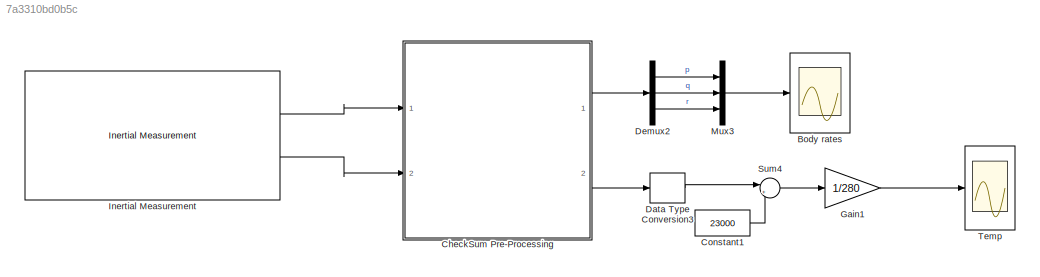
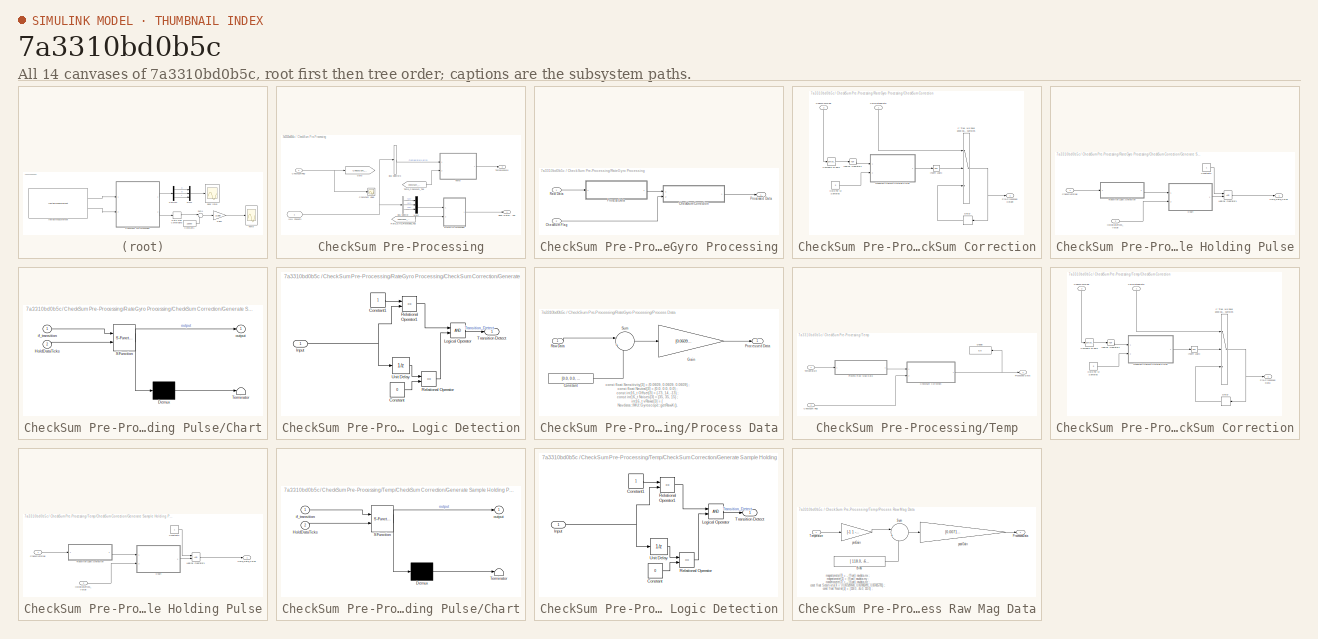
[diagram: thumbnail index - all 14 canvases of the model, root first then tree order]
MODEL slx_7a3310bd0b5c
KIND model
BLOCK [Scope] Body rates
  DataFormat = StructureWithTime
  Floating = off
  LimitDataPoints = off
  NumInputPorts = 1
  Ports = [1]
  SampleTime = 0
  SaveName = Gyro
  SaveToWorkspace = on
  ShowLegends = on
  TimeRange = 200
  YMax = 45
  YMin = -45
  ZoomMode = yonly
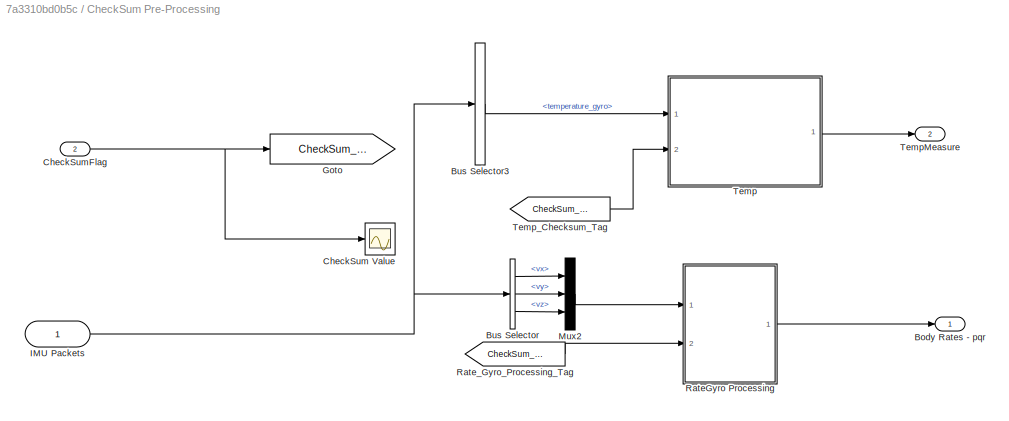
BLOCK [SubSystem] CheckSum Pre-Processing
  Ports = [2, 2]
  RequestExecContextInheritance = off
BLOCK [Outport] CheckSum Pre-Processing/Body Rates - pqr
  IconDisplay = Port number
BLOCK [BusSelector] CheckSum Pre-Processing/Bus Selector
  OutputSignals = vx,vy,vz
  Ports = [1, 3]
BLOCK [BusSelector] CheckSum Pre-Processing/Bus Selector3
  OutputSignals = temperature_gyro
  Ports = [1, 1]
BLOCK [Scope] CheckSum Pre-Processing/CheckSum Value
  DataFormat = StructureWithTime
  Floating = off
  LimitDataPoints = off
  NumInputPorts = 1
  Ports = [1]
  SampleTime = 0
  SaveName = CheckSum
  SaveToWorkspace = on
  ShowLegends = off
  YMax = 2500
  YMin = 0
  ZoomMode = xonly
BLOCK [Inport] CheckSum Pre-Processing/CheckSumFlag
  IconDisplay = Port number
  Port = 2
BLOCK [Goto] CheckSum Pre-Processing/Goto
  GotoTag = CheckSum_Tag
  IconDisplay = Signal name
BLOCK [Inport] CheckSum Pre-Processing/IMU Packets
  IconDisplay = Port number
BLOCK [Mux] CheckSum Pre-Processing/Mux2
  DisplayOption = bar
  Inputs = 3
  Ports = [3, 1]
BLOCK [SubSystem] CheckSum Pre-Processing/RateGyro Processing
  Ports = [2, 1]
  RequestExecContextInheritance = off
BLOCK [SubSystem] CheckSum Pre-Processing/RateGyro Processing/CheckSum Correction
  Ports = [2, 1]
  RequestExecContextInheritance = off
BLOCK [Inport] CheckSum Pre-Processing/RateGyro Processing/CheckSum Correction/CalculatedData
  IconDisplay = Port number
BLOCK [Inport] CheckSum Pre-Processing/RateGyro Processing/CheckSum Correction/CheckSumFlag
  IconDisplay = Port number
  Port = 2
BLOCK [Reference] CheckSum Pre-Processing/RateGyro Processing/CheckSum Correction/Compare To Zero  REF=simulink/Logic and Bit
Operations/Compare
To Zero
  OutDataTypeStr = boolean
  Ports = [1, 1]
  SourceBlock = simulink/Logic and Bit\nOperations/Compare\nTo Zero
  SourceType = Compare To Zero
  ZeroCross = on
  relop = >
BLOCK [Delay] CheckSum Pre-Processing/RateGyro Processing/CheckSum Correction/Delay
  DelayLength = 3
  InitialCondition = 0
  InputPortMap = u0
  Ports = [1, 1]
BLOCK [SubSystem] CheckSum Pre-Processing/RateGyro Processing/CheckSum Correction/Generate Sample Holding Pulse
  Ports = [2, 1]
  RequestExecContextInheritance = off
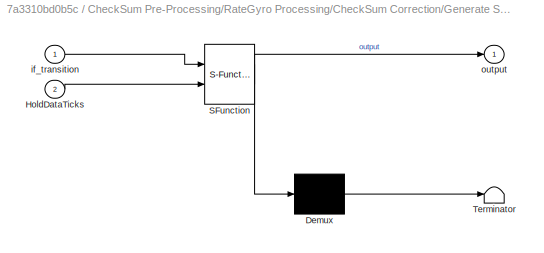
BLOCK [SubSystem] CheckSum Pre-Processing/RateGyro Processing/CheckSum Correction/Generate Sample Holding Pulse/Chart
  ErrorFcn = Stateflow.Translate.translate
  PermitHierarchicalResolution = ExplicitOnly
  Ports = [2, 1]
  RequestExecContextInheritance = off
  SFBlockType = Chart
  TreatAsAtomicUnit = on
BLOCK [Demux] CheckSum Pre-Processing/RateGyro Processing/CheckSum Correction/Generate Sample Holding Pulse/Chart/ Demux 
  Outputs = 1
  Ports = [1, 1]
BLOCK [S-Function] CheckSum Pre-Processing/RateGyro Processing/CheckSum Correction/Generate Sample Holding Pulse/Chart/ SFunction 
  EnableBusSupport = on
  FunctionName = sf_sfun
  PortCounts = [2 2]
  Ports = [2, 2]
  Tag = Stateflow S-Function TempMeasure 3
BLOCK [Terminator] CheckSum Pre-Processing/RateGyro Processing/CheckSum Correction/Generate Sample Holding Pulse/Chart/ Terminator 
BLOCK [Inport] CheckSum Pre-Processing/RateGyro Processing/CheckSum Correction/Generate Sample Holding Pulse/Chart/HoldDataTicks
  IconDisplay = Port number
  Port = 2
BLOCK [Inport] CheckSum Pre-Processing/RateGyro Processing/CheckSum Correction/Generate Sample Holding Pulse/Chart/if_transition
  IconDisplay = Port number
BLOCK [Outport] CheckSum Pre-Processing/RateGyro Processing/CheckSum Correction/Generate Sample Holding Pulse/Chart/output
  IconDisplay = Port number
BLOCK [Inport] CheckSum Pre-Processing/RateGyro Processing/CheckSum Correction/Generate Sample Holding Pulse/CheckSumFlag
  IconDisplay = Port number
BLOCK [Constant] CheckSum Pre-Processing/RateGyro Processing/CheckSum Correction/Generate Sample Holding Pulse/Constant2
BLOCK [Inport] CheckSum Pre-Processing/RateGyro Processing/CheckSum Correction/Generate Sample Holding Pulse/HoldDataTicks_Value
  IconDisplay = Port number
  Port = 2
BLOCK [Outport] CheckSum Pre-Processing/RateGyro Processing/CheckSum Correction/Generate Sample Holding Pulse/Hold_Data_Pulse
  IconDisplay = Port number
BLOCK [Logic] CheckSum Pre-Processing/RateGyro Processing/CheckSum Correction/Generate Sample Holding Pulse/Logical Operator1
  AllPortsSameDT = off
  OutDataTypeStr = boolean
  Ports = [2, 1]
BLOCK [SubSystem] CheckSum Pre-Processing/RateGyro Processing/CheckSum Correction/Generate Sample Holding Pulse/Transition Logic Detection
  Ports = [1, 1]
  RequestExecContextInheritance = off
BLOCK [Constant] CheckSum Pre-Processing/RateGyro Processing/CheckSum Correction/Generate Sample Holding Pulse/Transition Logic Detection/Constant
  Value = 0
BLOCK [Constant] CheckSum Pre-Processing/RateGyro Processing/CheckSum Correction/Generate Sample Holding Pulse/Transition Logic Detection/Constant1
BLOCK [Inport] CheckSum Pre-Processing/RateGyro Processing/CheckSum Correction/Generate Sample Holding Pulse/Transition Logic Detection/Input
  IconDisplay = Port number
BLOCK [Logic] CheckSum Pre-Processing/RateGyro Processing/CheckSum Correction/Generate Sample Holding Pulse/Transition Logic Detection/Logical Operator
  AllPortsSameDT = off
  OutDataTypeStr = boolean
  Ports = [2, 1]
BLOCK [RelationalOperator] CheckSum Pre-Processing/RateGyro Processing/CheckSum Correction/Generate Sample Holding Pulse/Transition Logic Detection/Relational Operator
  InputSameDT = off
  Operator = ==
  OutDataTypeStr = boolean
  Ports = [2, 1]
BLOCK [RelationalOperator] CheckSum Pre-Processing/RateGyro Processing/CheckSum Correction/Generate Sample Holding Pulse/Transition Logic Detection/Relational Operator1
  InputSameDT = off
  Operator = ==
  OutDataTypeStr = boolean
  Ports = [2, 1]
BLOCK [Outport] CheckSum Pre-Processing/RateGyro Processing/CheckSum Correction/Generate Sample Holding Pulse/Transition Logic Detection/Transition Detect
  IconDisplay = Port number
BLOCK [UnitDelay] CheckSum Pre-Processing/RateGyro Processing/CheckSum Correction/Generate Sample Holding Pulse/Transition Logic Detection/Unit Delay
  InputProcessing = Elements as channels (sample based)
  SampleTime = -1
BLOCK [Constant] CheckSum Pre-Processing/RateGyro Processing/CheckSum Correction/Hold For M Samples
  SampleTime = -1
  Value = 5
BLOCK [Switch] CheckSum Pre-Processing/RateGyro Processing/CheckSum Correction/If True, we have good data, If false, we have bad data, With bad data, use previous good data from N samples ago and hold it on that value for M samples
  Criteria = u2 > Threshold
  InputSameDT = off
  SaturateOnIntegerOverflow = off
BLOCK [Logic] CheckSum Pre-Processing/RateGyro Processing/CheckSum Correction/Invert Logic
  AllPortsSameDT = off
  Operator = NOT
  OutDataTypeStr = boolean
  Ports = [1, 1]
BLOCK [Logic] CheckSum Pre-Processing/RateGyro Processing/CheckSum Correction/Logical Operator1
  AllPortsSameDT = off
  Operator = NOT
  OutDataTypeStr = boolean
  Ports = [1, 1]
BLOCK [Outport] CheckSum Pre-Processing/RateGyro Processing/CheckSum Correction/Pre-Processed Height
  IconDisplay = Port number
BLOCK [Inport] CheckSum Pre-Processing/RateGyro Processing/CheckSum Flag
  IconDisplay = Port number
  Port = 2
BLOCK [SubSystem] CheckSum Pre-Processing/RateGyro Processing/Process Data
  Commented = through
  Ports = [1, 1]
  RequestExecContextInheritance = off
BLOCK [Constant] CheckSum Pre-Processing/RateGyro Processing/Process Data/Constant
  Value = [0.0, 0.0, 0.0]
BLOCK [Gain] CheckSum Pre-Processing/RateGyro Processing/Process Data/Gain
  Gain = [0.0609, 0.0609, 0.0609]
  OutDataTypeStr = Inherit: Inherit via internal rule
  ParamDataTypeStr = Inherit: Inherit via internal rule
  SaturateOnIntegerOverflow = off
BLOCK [Outport] CheckSum Pre-Processing/RateGyro Processing/Process Data/Processed Data
  IconDisplay = Port number
BLOCK [Inport] CheckSum Pre-Processing/RateGyro Processing/Process Data/Raw Data
  IconDisplay = Port number
BLOCK [Sum] CheckSum Pre-Processing/RateGyro Processing/Process Data/Sum
  IconShape = round
  InputSameDT = off
  Inputs = |++
  OutDataTypeStr = Inherit: Inherit via internal rule
  Ports = [2, 1]
  SaturateOnIntegerOverflow = off
BLOCK [Outport] CheckSum Pre-Processing/RateGyro Processing/Processed Data
  IconDisplay = Port number
BLOCK [Inport] CheckSum Pre-Processing/RateGyro Processing/Raw Data
  IconDisplay = Port number
BLOCK [From] CheckSum Pre-Processing/Rate_Gyro_Processing_Tag
  GotoTag = CheckSum_Tag
BLOCK [SubSystem] CheckSum Pre-Processing/Temp
  Ports = [2, 1]
  RequestExecContextInheritance = off
BLOCK [SubSystem] CheckSum Pre-Processing/Temp/CheckSum Correction
  Ports = [2, 1]
  RequestExecContextInheritance = off
BLOCK [Inport] CheckSum Pre-Processing/Temp/CheckSum Correction/CalculatedData
  IconDisplay = Port number
BLOCK [Inport] CheckSum Pre-Processing/Temp/CheckSum Correction/CheckSumFlag
  IconDisplay = Port number
  Port = 2
BLOCK [Reference] CheckSum Pre-Processing/Temp/CheckSum Correction/Compare To Zero  REF=simulink/Logic and Bit
Operations/Compare
To Zero
  OutDataTypeStr = boolean
  Ports = [1, 1]
  SourceBlock = simulink/Logic and Bit\nOperations/Compare\nTo Zero
  SourceType = Compare To Zero
  ZeroCross = on
  relop = >
BLOCK [Delay] CheckSum Pre-Processing/Temp/CheckSum Correction/Delay
  DelayLength = 3
  InitialCondition = 0
  InputPortMap = u0
  Ports = [1, 1]
BLOCK [SubSystem] CheckSum Pre-Processing/Temp/CheckSum Correction/Generate Sample Holding Pulse
  Ports = [2, 1]
  RequestExecContextInheritance = off
BLOCK [SubSystem] CheckSum Pre-Processing/Temp/CheckSum Correction/Generate Sample Holding Pulse/Chart
  ErrorFcn = Stateflow.Translate.translate
  PermitHierarchicalResolution = ExplicitOnly
  Ports = [2, 1]
  RequestExecContextInheritance = off
  SFBlockType = Chart
  TreatAsAtomicUnit = on
BLOCK [Demux] CheckSum Pre-Processing/Temp/CheckSum Correction/Generate Sample Holding Pulse/Chart/ Demux 
  Outputs = 1
  Ports = [1, 1]
BLOCK [S-Function] CheckSum Pre-Processing/Temp/CheckSum Correction/Generate Sample Holding Pulse/Chart/ SFunction 
  EnableBusSupport = on
  FunctionName = sf_sfun
  PortCounts = [2 2]
  Ports = [2, 2]
  Tag = Stateflow S-Function TempMeasure 7
BLOCK [Terminator] CheckSum Pre-Processing/Temp/CheckSum Correction/Generate Sample Holding Pulse/Chart/ Terminator 
BLOCK [Inport] CheckSum Pre-Processing/Temp/CheckSum Correction/Generate Sample Holding Pulse/Chart/HoldDataTicks
  IconDisplay = Port number
  Port = 2
BLOCK [Inport] CheckSum Pre-Processing/Temp/CheckSum Correction/Generate Sample Holding Pulse/Chart/if_transition
  IconDisplay = Port number
BLOCK [Outport] CheckSum Pre-Processing/Temp/CheckSum Correction/Generate Sample Holding Pulse/Chart/output
  IconDisplay = Port number
BLOCK [Inport] CheckSum Pre-Processing/Temp/CheckSum Correction/Generate Sample Holding Pulse/CheckSumFlag
  IconDisplay = Port number
BLOCK [Constant] CheckSum Pre-Processing/Temp/CheckSum Correction/Generate Sample Holding Pulse/Constant2
BLOCK [Inport] CheckSum Pre-Processing/Temp/CheckSum Correction/Generate Sample Holding Pulse/HoldDataTicks_Value
  IconDisplay = Port number
  Port = 2
BLOCK [Outport] CheckSum Pre-Processing/Temp/CheckSum Correction/Generate Sample Holding Pulse/Hold_Data_Pulse
  IconDisplay = Port number
BLOCK [Logic] CheckSum Pre-Processing/Temp/CheckSum Correction/Generate Sample Holding Pulse/Logical Operator1
  AllPortsSameDT = off
  OutDataTypeStr = boolean
  Ports = [2, 1]
BLOCK [SubSystem] CheckSum Pre-Processing/Temp/CheckSum Correction/Generate Sample Holding Pulse/Transition Logic Detection
  Ports = [1, 1]
  RequestExecContextInheritance = off
BLOCK [Constant] CheckSum Pre-Processing/Temp/CheckSum Correction/Generate Sample Holding Pulse/Transition Logic Detection/Constant
  Value = 0
BLOCK [Constant] CheckSum Pre-Processing/Temp/CheckSum Correction/Generate Sample Holding Pulse/Transition Logic Detection/Constant1
BLOCK [Inport] CheckSum Pre-Processing/Temp/CheckSum Correction/Generate Sample Holding Pulse/Transition Logic Detection/Input
  IconDisplay = Port number
BLOCK [Logic] CheckSum Pre-Processing/Temp/CheckSum Correction/Generate Sample Holding Pulse/Transition Logic Detection/Logical Operator
  AllPortsSameDT = off
  OutDataTypeStr = boolean
  Ports = [2, 1]
BLOCK [RelationalOperator] CheckSum Pre-Processing/Temp/CheckSum Correction/Generate Sample Holding Pulse/Transition Logic Detection/Relational Operator
  InputSameDT = off
  Operator = ==
  OutDataTypeStr = boolean
  Ports = [2, 1]
BLOCK [RelationalOperator] CheckSum Pre-Processing/Temp/CheckSum Correction/Generate Sample Holding Pulse/Transition Logic Detection/Relational Operator1
  InputSameDT = off
  Operator = ==
  OutDataTypeStr = boolean
  Ports = [2, 1]
BLOCK [Outport] CheckSum Pre-Processing/Temp/CheckSum Correction/Generate Sample Holding Pulse/Transition Logic Detection/Transition Detect
  IconDisplay = Port number
BLOCK [UnitDelay] CheckSum Pre-Processing/Temp/CheckSum Correction/Generate Sample Holding Pulse/Transition Logic Detection/Unit Delay
  InputProcessing = Elements as channels (sample based)
  SampleTime = -1
BLOCK [Constant] CheckSum Pre-Processing/Temp/CheckSum Correction/Hold For M Samples
  Value = 5
BLOCK [Switch] CheckSum Pre-Processing/Temp/CheckSum Correction/If True, we have good data, If false, we have bad data, With bad data, use previous good data from N samples ago and hold it on that value for M samples
  Criteria = u2 > Threshold
  InputSameDT = off
  SaturateOnIntegerOverflow = off
BLOCK [Logic] CheckSum Pre-Processing/Temp/CheckSum Correction/Invert Logic
  AllPortsSameDT = off
  Operator = NOT
  OutDataTypeStr = boolean
  Ports = [1, 1]
BLOCK [Logic] CheckSum Pre-Processing/Temp/CheckSum Correction/Logical Operator1
  AllPortsSameDT = off
  Operator = NOT
  OutDataTypeStr = boolean
  Ports = [1, 1]
BLOCK [Outport] CheckSum Pre-Processing/Temp/CheckSum Correction/Pre-Processed Data
  IconDisplay = Port number
BLOCK [Inport] CheckSum Pre-Processing/Temp/CheckSum Flag
  IconDisplay = Port number
  Port = 2
BLOCK [Display] CheckSum Pre-Processing/Temp/Display
  Decimation = 1
  Ports = [1]
BLOCK [SubSystem] CheckSum Pre-Processing/Temp/Process Raw Mag Data
  Commented = through
  Ports = [1, 1]
  RequestExecContextInheritance = off
BLOCK [Constant] CheckSum Pre-Processing/Temp/Process Raw Mag Data/Bias
  Value = [ 118.0, -65.0, 110.0 ]
BLOCK [Outport] CheckSum Pre-Processing/Temp/Process Raw Mag Data/ProcessedData
  IconDisplay = Port number
BLOCK [Sum] CheckSum Pre-Processing/Temp/Process Raw Mag Data/Sum
  IconShape = round
  InputSameDT = off
  Inputs = |+-
  OutDataTypeStr = Inherit: Inherit via internal rule
  Ports = [2, 1]
  SaturateOnIntegerOverflow = off
BLOCK [Inport] CheckSum Pre-Processing/Temp/Process Raw Mag Data/Temperature
  IconDisplay = Port number
BLOCK [Gain] CheckSum Pre-Processing/Temp/Process Raw Mag Data/postGain
  Gain = [0.0071492608, 0.0070882491, 0.0074057781]
  OutDataTypeStr = Inherit: Inherit via internal rule
  ParamDataTypeStr = Inherit: Inherit via internal rule
  SaturateOnIntegerOverflow = off
BLOCK [Gain] CheckSum Pre-Processing/Temp/Process Raw Mag Data/preGain
  Gain = [-1 1 -1]
  OutDataTypeStr = Inherit: Inherit via internal rule
  ParamDataTypeStr = Inherit: Inherit via internal rule
  SaturateOnIntegerOverflow = off
BLOCK [Outport] CheckSum Pre-Processing/Temp/Processed Data
  IconDisplay = Port number
BLOCK [Inport] CheckSum Pre-Processing/Temp/Temperature
  IconDisplay = Port number
BLOCK [Outport] CheckSum Pre-Processing/TempMeasure
  IconDisplay = Port number
  Port = 2
BLOCK [From] CheckSum Pre-Processing/Temp_Checksum_Tag
  GotoTag = CheckSum_Tag
BLOCK [Constant] Constant1
  OutDataTypeStr = int16
  Value = 23000
BLOCK [DataTypeConversion] Data Type Conversion3
  OutDataTypeStr = int16
  RndMeth = Floor
  SaturateOnIntegerOverflow = off
BLOCK [Demux] Demux2
  DisplayOption = bar
  Outputs = 3
  Ports = [1, 3]
BLOCK [Gain] Gain1
  Gain = 1/280
  OutDataTypeStr = double
  ParamDataTypeStr = Inherit: Inherit via internal rule
  SaturateOnIntegerOverflow = off
BLOCK [Reference] Inertial Measurement  REF=AR_Drone_2_Library/Inertial Measurement
  Ports = [0, 2]
  SourceBlock = AR_Drone_2_Library/Inertial Measurement
  Ts = 1/400
BLOCK [Mux] Mux3
  DisplayOption = bar
  Inputs = 3
  Ports = [3, 1]
BLOCK [Sum] Sum4
  IconShape = round
  InputSameDT = off
  Inputs = |++
  OutDataTypeStr = Inherit: Inherit via internal rule
  Ports = [2, 1]
  SaturateOnIntegerOverflow = off
BLOCK [Scope] Temp
  DataFormat = StructureWithTime
  Floating = off
  LimitDataPoints = off
  NumInputPorts = 1
  Ports = [1]
  SampleTime = 0
  SaveName = TempMeasure
  SaveToWorkspace = on
  ShowLegends = on
  TimeRange = 200
  YMax = 43.5
  YMin = 39
  ZoomMode = yonly
ANNOTATION CheckSum Pre-Processing/RateGyro Processing/Process Data: const float Sensitivity[ 3 ] = { 0.0609 , 0.0609 , 0.0609 } ; const float Neutral[ 3 ] = { 0.0 , 0.0 , 0.0 } ; const int16_t Offset[ 3 ] = { - 73 , 14 , - 13 } ; const int16_t Noises[ 3 ] = { 35 , 35 , 15 } ; int16_t vRaws[ 3 ] = { Navdata :: IMU :: Gyroscope :: getRawX (), Navdata :: IMU :: Gyroscope :: getRawY (), Navdata :: IMU :: Gyroscope :: getRawZ () } ; gyroscope[i] = vRaws[i] * Gyroscope ...<+34ch>
ANNOTATION CheckSum Pre-Processing/Temp/Process Raw Mag Data: magnetometer[ 0 ] = - ( float ) navdata.mx ; magnetometer[ 1 ] = ( float ) navdata.my ; magnetometer[ 2 ] = - ( float ) navdata.mz ; const float Sensitivity[ 3 ] = { 0.0071492608 , 0.0070882491 , 0.0074057781 } ; const float Neutral[ 3 ] = { 118.0 , - 65.0 , 110.0 } ;
LINE CheckSum Pre-Processing/Bus Selector3:1 -> CheckSum Pre-Processing/Temp:1
LINE CheckSum Pre-Processing/Bus Selector:1 -> CheckSum Pre-Processing/Mux2:1
LINE CheckSum Pre-Processing/Bus Selector:2 -> CheckSum Pre-Processing/Mux2:2
LINE CheckSum Pre-Processing/Bus Selector:3 -> CheckSum Pre-Processing/Mux2:3
NET CheckSum Pre-Processing/CheckSumFlag:1 -> CheckSum Pre-Processing/CheckSum Value:1, CheckSum Pre-Processing/Goto:1
NET CheckSum Pre-Processing/IMU Packets:1 -> CheckSum Pre-Processing/Bus Selector3:1, CheckSum Pre-Processing/Bus Selector:1
LINE CheckSum Pre-Processing/Mux2:1 -> CheckSum Pre-Processing/RateGyro Processing:1
LINE CheckSum Pre-Processing/RateGyro Processing/CheckSum Correction/CalculatedData:1 -> CheckSum Pre-Processing/RateGyro Processing/CheckSum Correction/If True, we have good data, If false, we have bad data, With bad data, use previous good data from N samples ago and hold it on that value for M samples:1
LINE CheckSum Pre-Processing/RateGyro Processing/CheckSum Correction/CheckSumFlag:1 -> CheckSum Pre-Processing/RateGyro Processing/CheckSum Correction/Compare To Zero:1
LINE CheckSum Pre-Processing/RateGyro Processing/CheckSum Correction/Compare To Zero:1 -> CheckSum Pre-Processing/RateGyro Processing/CheckSum Correction/Logical Operator1:1
LINE CheckSum Pre-Processing/RateGyro Processing/CheckSum Correction/Delay:1 -> CheckSum Pre-Processing/RateGyro Processing/CheckSum Correction/If True, we have good data, If false, we have bad data, With bad data, use previous good data from N samples ago and hold it on that value for M samples:3
LINE CheckSum Pre-Processing/RateGyro Processing/CheckSum Correction/Generate Sample Holding Pulse/Chart:1 -> CheckSum Pre-Processing/RateGyro Processing/CheckSum Correction/Generate Sample Holding Pulse/Logical Operator1:2
LINE CheckSum Pre-Processing/RateGyro Processing/CheckSum Correction/Generate Sample Holding Pulse/CheckSumFlag:1 -> CheckSum Pre-Processing/RateGyro Processing/CheckSum Correction/Generate Sample Holding Pulse/Transition Logic Detection:1
LINE CheckSum Pre-Processing/RateGyro Processing/CheckSum Correction/Generate Sample Holding Pulse/Constant2:1 -> CheckSum Pre-Processing/RateGyro Processing/CheckSum Correction/Generate Sample Holding Pulse/Logical Operator1:1
LINE CheckSum Pre-Processing/RateGyro Processing/CheckSum Correction/Generate Sample Holding Pulse/HoldDataTicks_Value:1 -> CheckSum Pre-Processing/RateGyro Processing/CheckSum Correction/Generate Sample Holding Pulse/Chart:2
LINE CheckSum Pre-Processing/RateGyro Processing/CheckSum Correction/Generate Sample Holding Pulse/Logical Operator1:1 -> CheckSum Pre-Processing/RateGyro Processing/CheckSum Correction/Generate Sample Holding Pulse/Hold_Data_Pulse:1
LINE CheckSum Pre-Processing/RateGyro Processing/CheckSum Correction/Generate Sample Holding Pulse/Transition Logic Detection/Constant1:1 -> CheckSum Pre-Processing/RateGyro Processing/CheckSum Correction/Generate Sample Holding Pulse/Transition Logic Detection/Relational Operator1:1
LINE CheckSum Pre-Processing/RateGyro Processing/CheckSum Correction/Generate Sample Holding Pulse/Transition Logic Detection/Constant:1 -> CheckSum Pre-Processing/RateGyro Processing/CheckSum Correction/Generate Sample Holding Pulse/Transition Logic Detection/Relational Operator:2
NET CheckSum Pre-Processing/RateGyro Processing/CheckSum Correction/Generate Sample Holding Pulse/Transition Logic Detection/Input:1 -> CheckSum Pre-Processing/RateGyro Processing/CheckSum Correction/Generate Sample Holding Pulse/Transition Logic Detection/Relational Operator1:2, CheckSum Pre-Processing/RateGyro Processing/CheckSum Correction/Generate Sample Holding Pulse/Transition Logic Detection/Unit Delay:1
LINE CheckSum Pre-Processing/RateGyro Processing/CheckSum Correction/Generate Sample Holding Pulse/Transition Logic Detection/Logical Operator:1 -> CheckSum Pre-Processing/RateGyro Processing/CheckSum Correction/Generate Sample Holding Pulse/Transition Logic Detection/Transition Detect:1
LINE CheckSum Pre-Processing/RateGyro Processing/CheckSum Correction/Generate Sample Holding Pulse/Transition Logic Detection/Relational Operator1:1 -> CheckSum Pre-Processing/RateGyro Processing/CheckSum Correction/Generate Sample Holding Pulse/Transition Logic Detection/Logical Operator:1
LINE CheckSum Pre-Processing/RateGyro Processing/CheckSum Correction/Generate Sample Holding Pulse/Transition Logic Detection/Relational Operator:1 -> CheckSum Pre-Processing/RateGyro Processing/CheckSum Correction/Generate Sample Holding Pulse/Transition Logic Detection/Logical Operator:2
LINE CheckSum Pre-Processing/RateGyro Processing/CheckSum Correction/Generate Sample Holding Pulse/Transition Logic Detection/Unit Delay:1 -> CheckSum Pre-Processing/RateGyro Processing/CheckSum Correction/Generate Sample Holding Pulse/Transition Logic Detection/Relational Operator:1
LINE CheckSum Pre-Processing/RateGyro Processing/CheckSum Correction/Generate Sample Holding Pulse/Transition Logic Detection:1 -> CheckSum Pre-Processing/RateGyro Processing/CheckSum Correction/Generate Sample Holding Pulse/Chart:1
LINE CheckSum Pre-Processing/RateGyro Processing/CheckSum Correction/Generate Sample Holding Pulse:1 -> CheckSum Pre-Processing/RateGyro Processing/CheckSum Correction/Invert Logic:1
LINE CheckSum Pre-Processing/RateGyro Processing/CheckSum Correction/Hold For M Samples:1 -> CheckSum Pre-Processing/RateGyro Processing/CheckSum Correction/Generate Sample Holding Pulse:2
NET CheckSum Pre-Processing/RateGyro Processing/CheckSum Correction/If True, we have good data, If false, we have bad data, With bad data, use previous good data from N samples ago and hold it on that value for M samples:1 -> CheckSum Pre-Processing/RateGyro Processing/CheckSum Correction/Delay:1, CheckSum Pre-Processing/RateGyro Processing/CheckSum Correction/Pre-Processed Height:1
LINE CheckSum Pre-Processing/RateGyro Processing/CheckSum Correction/Invert Logic:1 -> CheckSum Pre-Processing/RateGyro Processing/CheckSum Correction/If True, we have good data, If false, we have bad data, With bad data, use previous good data from N samples ago and hold it on that value for M samples:2
LINE CheckSum Pre-Processing/RateGyro Processing/CheckSum Correction/Logical Operator1:1 -> CheckSum Pre-Processing/RateGyro Processing/CheckSum Correction/Generate Sample Holding Pulse:1
LINE CheckSum Pre-Processing/RateGyro Processing/CheckSum Correction:1 -> CheckSum Pre-Processing/RateGyro Processing/Processed Data:1
LINE CheckSum Pre-Processing/RateGyro Processing/CheckSum Flag:1 -> CheckSum Pre-Processing/RateGyro Processing/CheckSum Correction:2
LINE CheckSum Pre-Processing/RateGyro Processing/Process Data/Constant:1 -> CheckSum Pre-Processing/RateGyro Processing/Process Data/Sum:2
LINE CheckSum Pre-Processing/RateGyro Processing/Process Data/Gain:1 -> CheckSum Pre-Processing/RateGyro Processing/Process Data/Processed Data:1
LINE CheckSum Pre-Processing/RateGyro Processing/Process Data/Raw Data:1 -> CheckSum Pre-Processing/RateGyro Processing/Process Data/Sum:1
LINE CheckSum Pre-Processing/RateGyro Processing/Process Data/Sum:1 -> CheckSum Pre-Processing/RateGyro Processing/Process Data/Gain:1
LINE CheckSum Pre-Processing/RateGyro Processing/Process Data:1 -> CheckSum Pre-Processing/RateGyro Processing/CheckSum Correction:1
LINE CheckSum Pre-Processing/RateGyro Processing/Raw Data:1 -> CheckSum Pre-Processing/RateGyro Processing/Process Data:1
LINE CheckSum Pre-Processing/RateGyro Processing:1 -> CheckSum Pre-Processing/Body Rates - pqr:1
LINE CheckSum Pre-Processing/Rate_Gyro_Processing_Tag:1 -> CheckSum Pre-Processing/RateGyro Processing:2
LINE CheckSum Pre-Processing/Temp/CheckSum Correction/CalculatedData:1 -> CheckSum Pre-Processing/Temp/CheckSum Correction/If True, we have good data, If false, we have bad data, With bad data, use previous good data from N samples ago and hold it on that value for M samples:1
LINE CheckSum Pre-Processing/Temp/CheckSum Correction/CheckSumFlag:1 -> CheckSum Pre-Processing/Temp/CheckSum Correction/Compare To Zero:1
LINE CheckSum Pre-Processing/Temp/CheckSum Correction/Compare To Zero:1 -> CheckSum Pre-Processing/Temp/CheckSum Correction/Logical Operator1:1
LINE CheckSum Pre-Processing/Temp/CheckSum Correction/Delay:1 -> CheckSum Pre-Processing/Temp/CheckSum Correction/If True, we have good data, If false, we have bad data, With bad data, use previous good data from N samples ago and hold it on that value for M samples:3
LINE CheckSum Pre-Processing/Temp/CheckSum Correction/Generate Sample Holding Pulse/Chart:1 -> CheckSum Pre-Processing/Temp/CheckSum Correction/Generate Sample Holding Pulse/Logical Operator1:2
LINE CheckSum Pre-Processing/Temp/CheckSum Correction/Generate Sample Holding Pulse/CheckSumFlag:1 -> CheckSum Pre-Processing/Temp/CheckSum Correction/Generate Sample Holding Pulse/Transition Logic Detection:1
LINE CheckSum Pre-Processing/Temp/CheckSum Correction/Generate Sample Holding Pulse/Constant2:1 -> CheckSum Pre-Processing/Temp/CheckSum Correction/Generate Sample Holding Pulse/Logical Operator1:1
LINE CheckSum Pre-Processing/Temp/CheckSum Correction/Generate Sample Holding Pulse/HoldDataTicks_Value:1 -> CheckSum Pre-Processing/Temp/CheckSum Correction/Generate Sample Holding Pulse/Chart:2
LINE CheckSum Pre-Processing/Temp/CheckSum Correction/Generate Sample Holding Pulse/Logical Operator1:1 -> CheckSum Pre-Processing/Temp/CheckSum Correction/Generate Sample Holding Pulse/Hold_Data_Pulse:1
LINE CheckSum Pre-Processing/Temp/CheckSum Correction/Generate Sample Holding Pulse/Transition Logic Detection/Constant1:1 -> CheckSum Pre-Processing/Temp/CheckSum Correction/Generate Sample Holding Pulse/Transition Logic Detection/Relational Operator1:1
LINE CheckSum Pre-Processing/Temp/CheckSum Correction/Generate Sample Holding Pulse/Transition Logic Detection/Constant:1 -> CheckSum Pre-Processing/Temp/CheckSum Correction/Generate Sample Holding Pulse/Transition Logic Detection/Relational Operator:2
NET CheckSum Pre-Processing/Temp/CheckSum Correction/Generate Sample Holding Pulse/Transition Logic Detection/Input:1 -> CheckSum Pre-Processing/Temp/CheckSum Correction/Generate Sample Holding Pulse/Transition Logic Detection/Relational Operator1:2, CheckSum Pre-Processing/Temp/CheckSum Correction/Generate Sample Holding Pulse/Transition Logic Detection/Unit Delay:1
LINE CheckSum Pre-Processing/Temp/CheckSum Correction/Generate Sample Holding Pulse/Transition Logic Detection/Logical Operator:1 -> CheckSum Pre-Processing/Temp/CheckSum Correction/Generate Sample Holding Pulse/Transition Logic Detection/Transition Detect:1
LINE CheckSum Pre-Processing/Temp/CheckSum Correction/Generate Sample Holding Pulse/Transition Logic Detection/Relational Operator1:1 -> CheckSum Pre-Processing/Temp/CheckSum Correction/Generate Sample Holding Pulse/Transition Logic Detection/Logical Operator:1
LINE CheckSum Pre-Processing/Temp/CheckSum Correction/Generate Sample Holding Pulse/Transition Logic Detection/Relational Operator:1 -> CheckSum Pre-Processing/Temp/CheckSum Correction/Generate Sample Holding Pulse/Transition Logic Detection/Logical Operator:2
LINE CheckSum Pre-Processing/Temp/CheckSum Correction/Generate Sample Holding Pulse/Transition Logic Detection/Unit Delay:1 -> CheckSum Pre-Processing/Temp/CheckSum Correction/Generate Sample Holding Pulse/Transition Logic Detection/Relational Operator:1
LINE CheckSum Pre-Processing/Temp/CheckSum Correction/Generate Sample Holding Pulse/Transition Logic Detection:1 -> CheckSum Pre-Processing/Temp/CheckSum Correction/Generate Sample Holding Pulse/Chart:1
LINE CheckSum Pre-Processing/Temp/CheckSum Correction/Generate Sample Holding Pulse:1 -> CheckSum Pre-Processing/Temp/CheckSum Correction/Invert Logic:1
LINE CheckSum Pre-Processing/Temp/CheckSum Correction/Hold For M Samples:1 -> CheckSum Pre-Processing/Temp/CheckSum Correction/Generate Sample Holding Pulse:2
NET CheckSum Pre-Processing/Temp/CheckSum Correction/If True, we have good data, If false, we have bad data, With bad data, use previous good data from N samples ago and hold it on that value for M samples:1 -> CheckSum Pre-Processing/Temp/CheckSum Correction/Delay:1, CheckSum Pre-Processing/Temp/CheckSum Correction/Pre-Processed Data:1
LINE CheckSum Pre-Processing/Temp/CheckSum Correction/Invert Logic:1 -> CheckSum Pre-Processing/Temp/CheckSum Correction/If True, we have good data, If false, we have bad data, With bad data, use previous good data from N samples ago and hold it on that value for M samples:2
LINE CheckSum Pre-Processing/Temp/CheckSum Correction/Logical Operator1:1 -> CheckSum Pre-Processing/Temp/CheckSum Correction/Generate Sample Holding Pulse:1
NET CheckSum Pre-Processing/Temp/CheckSum Correction:1 -> CheckSum Pre-Processing/Temp/Display:1, CheckSum Pre-Processing/Temp/Processed Data:1
LINE CheckSum Pre-Processing/Temp/CheckSum Flag:1 -> CheckSum Pre-Processing/Temp/CheckSum Correction:2
LINE CheckSum Pre-Processing/Temp/Process Raw Mag Data/Bias:1 -> CheckSum Pre-Processing/Temp/Process Raw Mag Data/Sum:2
LINE CheckSum Pre-Processing/Temp/Process Raw Mag Data/Sum:1 -> CheckSum Pre-Processing/Temp/Process Raw Mag Data/postGain:1
LINE CheckSum Pre-Processing/Temp/Process Raw Mag Data/Temperature:1 -> CheckSum Pre-Processing/Temp/Process Raw Mag Data/preGain:1
LINE CheckSum Pre-Processing/Temp/Process Raw Mag Data/postGain:1 -> CheckSum Pre-Processing/Temp/Process Raw Mag Data/ProcessedData:1
LINE CheckSum Pre-Processing/Temp/Process Raw Mag Data/preGain:1 -> CheckSum Pre-Processing/Temp/Process Raw Mag Data/Sum:1
LINE CheckSum Pre-Processing/Temp/Process Raw Mag Data:1 -> CheckSum Pre-Processing/Temp/CheckSum Correction:1
LINE CheckSum Pre-Processing/Temp/Temperature:1 -> CheckSum Pre-Processing/Temp/Process Raw Mag Data:1
LINE CheckSum Pre-Processing/Temp:1 -> CheckSum Pre-Processing/TempMeasure:1
LINE CheckSum Pre-Processing/Temp_Checksum_Tag:1 -> CheckSum Pre-Processing/Temp:2
LINE CheckSum Pre-Processing:1 -> Demux2:1
LINE CheckSum Pre-Processing:2 -> Data Type Conversion3:1
LINE Constant1:1 -> Sum4:2
LINE Data Type Conversion3:1 -> Sum4:1
LINE Demux2:1 -> Mux3:1
LINE Demux2:2 -> Mux3:2
LINE Demux2:3 -> Mux3:3
LINE Gain1:1 -> Temp:1
LINE Inertial Measurement:1 -> CheckSum Pre-Processing:1
LINE Inertial Measurement:2 -> CheckSum Pre-Processing:2
LINE Mux3:1 -> Body rates:1
LINE Sum4:1 -> Gain1:1
note: NET lines group one-source signal fan-out (src -> all destinations, sorted); 1:1 wires keep LINE
